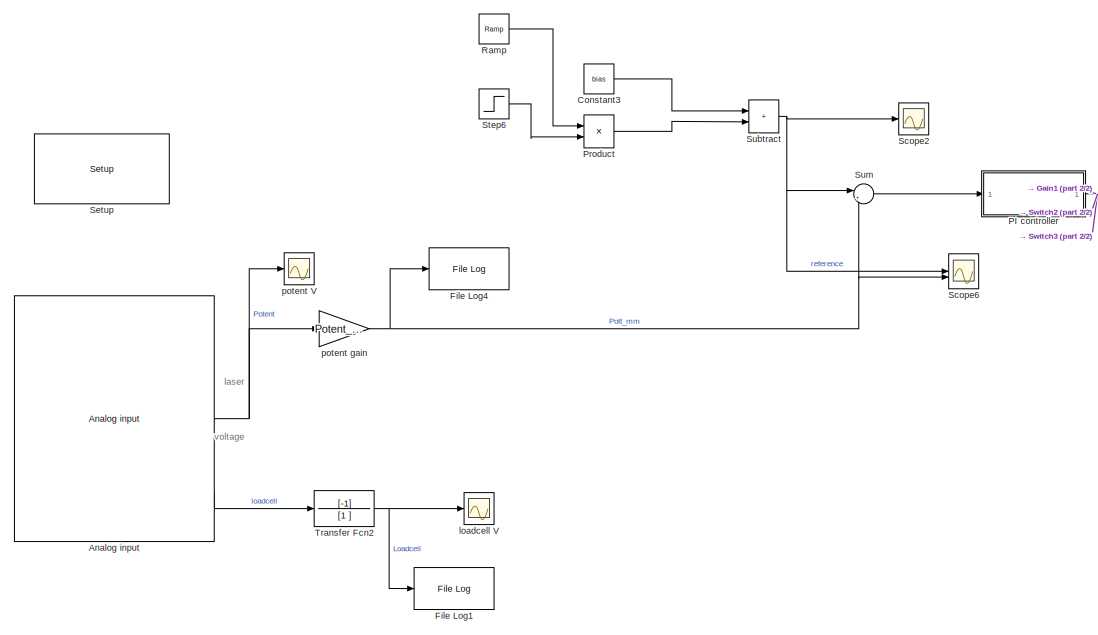
[diagram: root canvas - part 1/2, top left region]
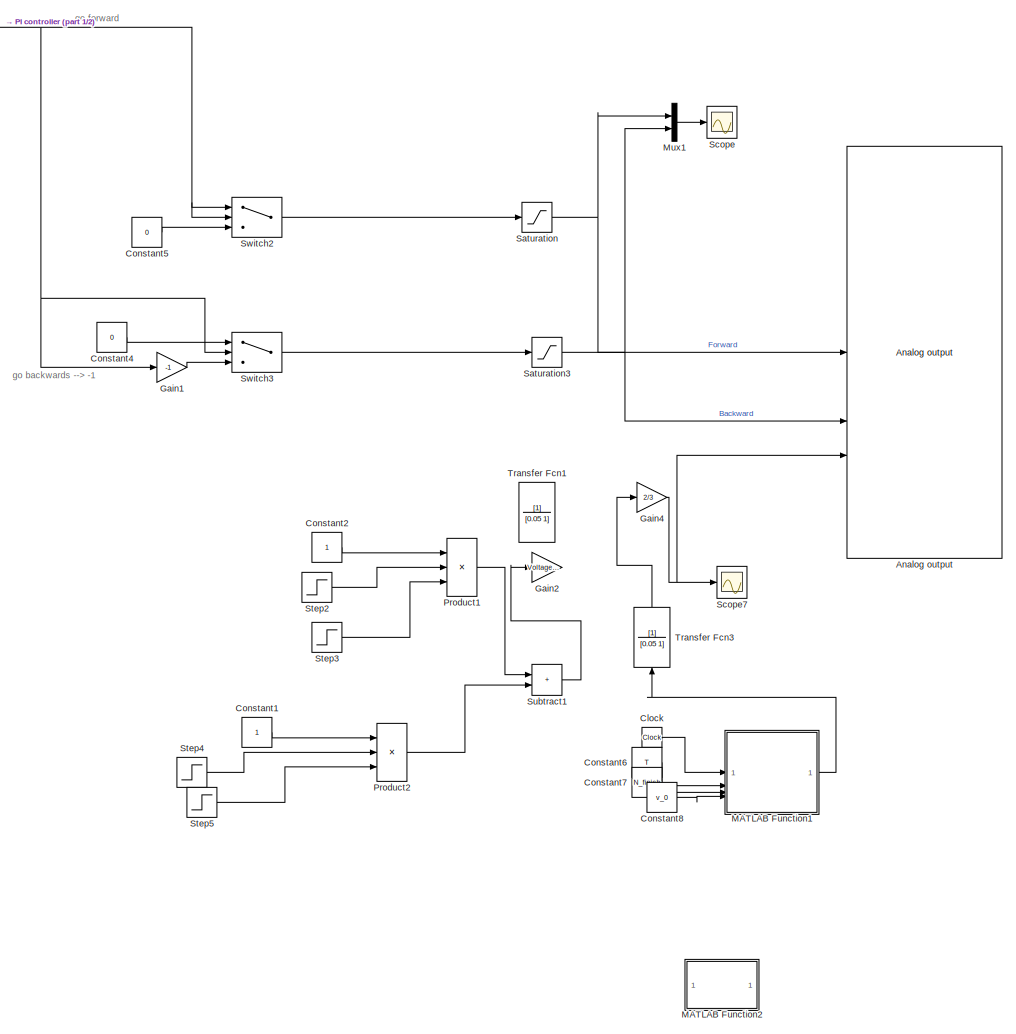
[diagram: root canvas - part 2/2, right side, full height]
MODEL slx_30471723604a
KIND model
CONFIG AbsTol = auto
CONFIG EnableMultiTasking = on
CONFIG FixedStep = T_sample
CONFIG MaxStep = auto
CONFIG MinStep = auto
CONFIG RelTol = 1e-3
CONFIG SampleTimeConstraint = Unconstrained
CONFIG SolverName = FixedStepAuto
CONFIG StartTime = 0.0
CONFIG StopTime = Duration_time
BLOCK [Reference] Analog input   REF=speedgoatlib_IO131/Analog input 
  SourceBlock = speedgoatlib_IO131/Analog input
  SourceProductName = IO131
  SourceType = ad_IO131
BLOCK [Reference] Analog output   REF=speedgoatlib_IO131/Analog output 
  SourceBlock = speedgoatlib_IO131/Analog output
  SourceProductName = IO131
  SourceType = da_IO131
BLOCK [Clock] Clock
  Commented = on
BLOCK [Constant] Constant1
  Commented = on
BLOCK [Constant] Constant2
  Commented = on
BLOCK [Constant] Constant3
  Value = bias
BLOCK [Constant] Constant4
  Value = 0
BLOCK [Constant] Constant5
  Value = 0
BLOCK [Constant] Constant6
  Commented = on
  Value = T
BLOCK [Constant] Constant7
  Commented = on
  Value = N_finish
BLOCK [Constant] Constant8
  Commented = on
  Value = v_0
BLOCK [Reference] File Log1  REF=slrealtimeloglib/File Log
  SourceBlock = slrealtimeloglib/File Log
  SourceType = slrealtimeloggingblock
BLOCK [Reference] File Log4  REF=slrealtimeloglib/File Log
  SourceBlock = slrealtimeloglib/File Log
  SourceType = slrealtimeloggingblock
BLOCK [Gain] Gain1
  Gain = -1
BLOCK [Gain] Gain2
  Commented = on
  Gain = Voltage/1000
BLOCK [Gain] Gain4
  Commented = on
  Gain = 2/3
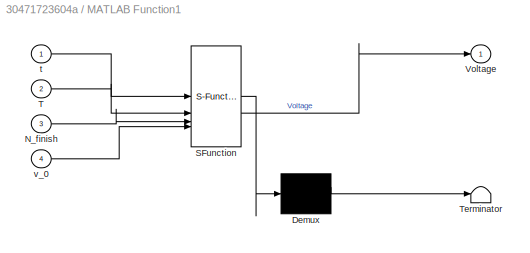
BLOCK [SubSystem] MATLAB Function1
  Commented = on
  ErrorFcn = Stateflow.Translate.translate
  PermitHierarchicalResolution = ExplicitOnly
  SFBlockType = MATLAB Function
  TreatAsAtomicUnit = on
BLOCK [Demux] MATLAB Function1/ Demux 
  Outputs = 1
BLOCK [S-Function] MATLAB Function1/ SFunction 
  EnableBusSupport = off
  FunctionName = sf_sfun
  PortCounts = [4 2]
  SFcnIsStateOwnerBlock = off
  SFunctionDeploymentMode = off
  Tag = Stateflow S-Function 1
BLOCK [Terminator] MATLAB Function1/ Terminator 
BLOCK [Inport] MATLAB Function1/N_finish
  Port = 3
BLOCK [Inport] MATLAB Function1/T
  Port = 2
BLOCK [Outport] MATLAB Function1/Voltage
BLOCK [Inport] MATLAB Function1/t
BLOCK [Inport] MATLAB Function1/v_0
  Port = 4
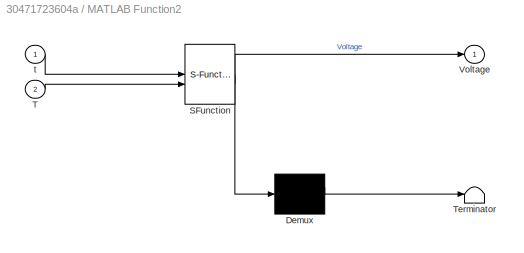
BLOCK [SubSystem] MATLAB Function2
  Commented = on
  ErrorFcn = Stateflow.Translate.translate
  PermitHierarchicalResolution = ExplicitOnly
  SFBlockType = MATLAB Function
  TreatAsAtomicUnit = on
BLOCK [Demux] MATLAB Function2/ Demux 
  Outputs = 1
BLOCK [S-Function] MATLAB Function2/ SFunction 
  EnableBusSupport = off
  FunctionName = sf_sfun
  PortCounts = [2 2]
  SFcnIsStateOwnerBlock = off
  SFunctionDeploymentMode = off
  Tag = Stateflow S-Function 3
BLOCK [Terminator] MATLAB Function2/ Terminator 
BLOCK [Inport] MATLAB Function2/T
  Port = 2
BLOCK [Outport] MATLAB Function2/Voltage
BLOCK [Inport] MATLAB Function2/t
BLOCK [Mux] Mux1
  DisplayOption = bar
  Inputs = 2
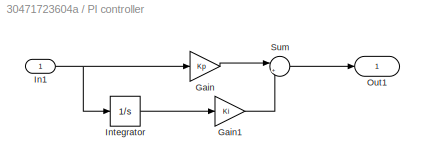
BLOCK [SubSystem] PI controller
BLOCK [Gain] PI controller/Gain
  Gain = Kp
BLOCK [Gain] PI controller/Gain1
  Gain = Ki
BLOCK [Inport] PI controller/In1
BLOCK [Integrator] PI controller/Integrator
BLOCK [Outport] PI controller/Out1
BLOCK [Sum] PI controller/Sum
  Inputs = |++
BLOCK [Product] Product
BLOCK [Product] Product1
  Commented = on
  Inputs = 3
BLOCK [Product] Product2
  Commented = on
  Inputs = 3
BLOCK [Reference] Ramp  REF=simulink/Sources/Ramp
  SourceBlock = simulink/Sources/Ramp
  SourceType = Ramp
BLOCK [Saturate] Saturation
  LowerLimit = 0
  UpperLimit = 5
BLOCK [Saturate] Saturation3
  LowerLimit = 0
  UpperLimit = 5
BLOCK [Scope] Scope
  ActiveDisplayYMaximum = 5.625
  ActiveDisplayYMinimum = -0.62499999999999989
  DataLoggingVariableName = ScopeData1
  Floating = off
  GraphicalSettings = {"Style":{"BackgroundColor":[0.12941176470588237,0.12941176470588237,0.12941176470588237],"AxesColor":[0.07058823529411765,0.07058823529411765,0.07058823529411765],"LabelsColor":[0.8509803921568627,0.8509803921568627,0.8509803921568627],"PreserveColors":false,"Visible":[true,true],"LineStyle":["-","-"],"LineWidth":[1.5,1.5],"BarWidth":[0.9,0.9],"LineColor":["auto","auto"],"LineFaceAlpha":[1,1],"Li...<+2066ch>
  MultipleDisplayCache = [{"MaxYLimMag":5.625,"MaxYLimReal":5.625,"MinYLimMag":0,"MinYLimReal":-0.62499999999999989,"PlotAsMagnitudePhase":false,"ShowGrid":true,"ShowLegend":false,"Title":"%<SignalLabel>","YLabel":""}]
  NumInputPorts = 1
  ScopeFrameLocation = window
  WasSavedAsWebScope = on
  WindowPosition = [113.000000,96.000000,1280.000000,682.000000,]
BLOCK [Scope] Scope2
  ActiveDisplayYMaximum = 97.9999859375
  ActiveDisplayYMinimum = 78.0000015625
  Floating = off
  GraphicalSettings = {"Style":{"BackgroundColor":[0.12941176470588237,0.12941176470588237,0.12941176470588237],"AxesColor":[0.07058823529411765,0.07058823529411765,0.07058823529411765],"LabelsColor":[0.8509803921568627,0.8509803921568627,0.8509803921568627],"PreserveColors":false,"Visible":[true],"LineStyle":["-"],"LineWidth":[1.5],"BarWidth":[0.9],"LineColor":["auto"],"LineFaceAlpha":[1],"LineEdgeAlpha":[1],"Marker":...<+1994ch>
  MultipleDisplayCache = [{"MaxYLimMag":97.9999859375,"MaxYLimReal":97.9999859375,"MinYLimMag":78.0000015625,"MinYLimReal":78.0000015625,"PlotAsMagnitudePhase":false,"ShowGrid":true,"ShowLegend":false,"Title":"%<SignalLabel>","YLabel":""}]
  NumInputPorts = 1
  ScopeFrameLocation = window
  WasSavedAsWebScope = on
  WindowPosition = [1.000000,49.000000,1536.000000,793.000000,]
BLOCK [Scope] Scope6
  ActiveDisplayYMaximum = 116.08282954478828
  ActiveDisplayYMinimum = 80.761033438366127
  DataLoggingVariableName = ScopeData6
  Floating = off
  GraphicalSettings = {"AxesScalingProperties":{"AlignXAxis":"Center","AlignYAxis":"Center","AutoScaleXAxisLimits":false,"AxesScaling":"Manual","AxesScalingNumUpdates":10,"ExpandOnly":true,"ScaleAxesLimitsAtStop":false,"XAxisDataRange":100,"YAxisDataRange":80},"DisplayProperties":{"ColorOrder":["auto","auto","auto","auto","auto","auto","auto","auto","auto","auto","auto","auto","auto","auto","auto","auto","auto","auto",...<+2155ch>
  LayoutDimensionsString = [1,1]
  MultipleDisplayCache = [{"MaxYLimMag":98.080939574273287,"MaxYLimReal":116.08282954478828,"MinYLimMag":77.4290169375143,"MinYLimReal":80.761033438366127,"PlotAsMagnitudePhase":false,"ShowGrid":true,"ShowLegend":false,"Title":"%<SignalLabel>","YLabel":""}]
  NumInputPorts = 2
  ScopeFrameLocation = window
  Visible = on
  WasSavedAsWebScope = on
  WindowPosition = [1.000000,49.000000,1536.000000,793.000000,]
BLOCK [Scope] Scope7
  ActiveDisplayYMaximum = 4.9999999896942331
  ActiveDisplayYMinimum = -4.9999999896942331
  Commented = on
  DataLoggingVariableName = ScopeData2
  Floating = off
  GraphicalSettings = {"Style":{"BackgroundColor":[0.12941176470588237,0.12941176470588237,0.12941176470588237],"AxesColor":[0.07058823529411765,0.07058823529411765,0.07058823529411765],"LabelsColor":[0.8509803921568627,0.8509803921568627,0.8509803921568627],"PreserveColors":false,"Visible":[true],"LineStyle":["-"],"LineWidth":[1.5],"BarWidth":[0.9],"LineColor":["auto"],"LineFaceAlpha":[1],"LineEdgeAlpha":[1],"Marker":...<+1991ch>
  MultipleDisplayCache = [{"MaxYLimMag":4.9999999896942331,"MaxYLimReal":4.9999999896942331,"MinYLimMag":0,"MinYLimReal":-4.9999999896942331,"PlotAsMagnitudePhase":false,"ShowGrid":true,"ShowLegend":false,"Title":"%<SignalLabel>","YLabel":""}]
  NumInputPorts = 1
  ScopeFrameLocation = window
  WasSavedAsWebScope = on
  WindowPosition = [2.000000,50.000000,1278.000000,682.000000,]
BLOCK [Reference] Setup   REF=speedgoatlib_IO131/Setup 
  SourceBlock = speedgoatlib_IO131/Setup
  SourceProductName = IO131
  SourceType = setup_IO131
BLOCK [Step] Step2
  Commented = on
  SampleTime = T_sample
  Time = (N_start-0.25)*T
BLOCK [Step] Step3
  After = 0
  Before = 1
  Commented = on
  SampleTime = T_sample
  Time = (cyclenum+0.25)*T
BLOCK [Step] Step4
  Commented = on
  SampleTime = T_sample
  Time = (2*cyclenum+0.25)*T
BLOCK [Step] Step5
  After = 0
  Before = 1
  Commented = on
  SampleTime = T_sample
  Time = (cyclenum+0.25)*T
BLOCK [Step] Step6
  After = 0
  Before = 1
  SampleTime = T_sample
  Time = N_finish*T
BLOCK [Sum] Subtract
  IconShape = rectangular
BLOCK [Sum] Subtract1
  Commented = on
  IconShape = rectangular
BLOCK [Sum] Sum
  Inputs = |+-
BLOCK [Switch] Switch2
  Criteria = u2 > Threshold
  InputSameDT = off
  SaturateOnIntegerOverflow = off
BLOCK [Switch] Switch3
  InputSameDT = off
  SaturateOnIntegerOverflow = off
BLOCK [TransferFcn] Transfer Fcn1
  Commented = on
  Denominator = [0.05 1]
  NameLocation = right
BLOCK [TransferFcn] Transfer Fcn2
  Denominator = [1 ]
  Numerator = [-1]
BLOCK [TransferFcn] Transfer Fcn3
  Commented = on
  Denominator = [0.05 1]
  NameLocation = right
BLOCK [Scope] loadcell V
  ActiveDisplayYMaximum = -0.15693904020752275
  ActiveDisplayYMinimum = -2.2558175020981155
  DataLoggingVariableName = ScopeData2
  Floating = off
  GraphicalSettings = {"AxesScalingProperties":{"AlignXAxis":"Center","AlignYAxis":"Center","AutoScaleXAxisLimits":false,"AxesScaling":"Manual","AxesScalingNumUpdates":10,"ExpandOnly":true,"ScaleAxesLimitsAtStop":false,"XAxisDataRange":100,"YAxisDataRange":80},"DisplayProperties":{"ColorOrder":["auto","auto","auto","auto","auto","auto","auto","auto","auto","auto","auto","auto","auto","auto","auto","auto","auto","auto",...<+2014ch>
  MultipleDisplayCache = [{"MaxYLimMag":2.2558175020981155,"MaxYLimReal":-0.15693904020752275,"MinYLimMag":0,"MinYLimReal":-2.2558175020981155,"PlotAsMagnitudePhase":false,"ShowGrid":true,"ShowLegend":false,"Title":"%<SignalLabel>","YLabel":""}]
  NumInputPorts = 1
  ScopeFrameLocation = window
  Visible = on
  WasSavedAsWebScope = on
  WindowPosition = [1.000000,49.000000,1536.000000,793.000000,]
BLOCK [Scope] potent V
  ActiveDisplayYMaximum = 3.5191904526319995
  ActiveDisplayYMinimum = 3.4820565734642819
  DataLoggingVariableName = ScopeData3
  Floating = off
  GraphicalSettings = {"Style":{"BackgroundColor":[0.12941176470588237,0.12941176470588237,0.12941176470588237],"AxesColor":[0.07058823529411765,0.07058823529411765,0.07058823529411765],"LabelsColor":[0.8509803921568627,0.8509803921568627,0.8509803921568627],"PreserveColors":false,"Visible":[true],"LineStyle":["-"],"LineWidth":[1.5],"BarWidth":[0.9],"LineColor":["auto"],"LineFaceAlpha":[1],"LineEdgeAlpha":[1],"Marker":...<+2025ch>
  MultipleDisplayCache = [{"MaxYLimMag":3.576333257038224,"MaxYLimReal":3.5191904526319995,"MinYLimMag":2.8233005264362556,"MinYLimReal":3.4820565734642819,"PlotAsMagnitudePhase":false,"ShowGrid":true,"ShowLegend":false,"Title":"%<SignalLabel>","YLabel":""}]
  NumInputPorts = 1
  ScopeFrameLocation = window
  WasSavedAsWebScope = on
  WindowPosition = [1.000000,49.000000,1536.000000,793.000000,]
BLOCK [Gain] potent gain
  Gain = Potent_gain
ANNOTATION (root): go backwards --> -1
ANNOTATION (root): go forward
ANNOTATION (root): laser
ANNOTATION (root): voltage
NET Analog input :1 -> potent V:1, potent gain:1
LINE Analog input :4 -> Transfer Fcn2:1
LINE Clock:1 -> MATLAB Function1:1
LINE Constant1:1 -> Product2:1
LINE Constant2:1 -> Product1:1
LINE Constant3:1 -> Subtract:1
LINE Constant4:1 -> Switch3:1
LINE Constant5:1 -> Switch2:3
LINE Constant6:1 -> MATLAB Function1:2
LINE Constant7:1 -> MATLAB Function1:3
LINE Constant8:1 -> MATLAB Function1:4
LINE Gain1:1 -> Switch3:3
NET Gain4:1 -> Analog output :3, Scope7:1
LINE MATLAB Function1:1 -> Transfer Fcn3:1
LINE Mux1:1 -> Scope:1
LINE PI controller/Gain1:1 -> PI controller/Sum:2
LINE PI controller/Gain:1 -> PI controller/Sum:1
NET PI controller/In1:1 -> PI controller/Gain:1, PI controller/Integrator:1
LINE PI controller/Integrator:1 -> PI controller/Gain1:1
LINE PI controller/Sum:1 -> PI controller/Out1:1
NET PI controller:1 -> Gain1:1, Switch2:1, Switch2:2, Switch3:2
LINE Product1:1 -> Subtract1:1
LINE Product2:1 -> Subtract1:2
LINE Product:1 -> Subtract:2
LINE Ramp:1 -> Product:1
NET Saturation3:1 -> Analog output :2, Mux1:2
NET Saturation:1 -> Analog output :1, Mux1:1
LINE Step2:1 -> Product1:2
LINE Step3:1 -> Product1:3
LINE Step4:1 -> Product2:2
LINE Step5:1 -> Product2:3
LINE Step6:1 -> Product:2
LINE Subtract1:1 -> Gain2:1
NET Subtract:1 -> Scope2:1, Scope6:1, Sum:1
LINE Sum:1 -> PI controller:1
LINE Switch2:1 -> Saturation:1
LINE Switch3:1 -> Saturation3:1
NET Transfer Fcn2:1 -> File Log1:1, loadcell V:1
LINE Transfer Fcn3:1 -> Gain4:1
NET potent gain:1 -> File Log4:1, Scope6:2, Sum:2
note: NET lines group one-source signal fan-out (src -> all destinations, sorted); 1:1 wires keep LINE
CHART MATLAB Function1 states=1 transitions=1
  STATE_LABEL 'eML_blk_kernel()'
  STATE_LABEL 'SCRIPT:\nfunction Voltage = generate_voltage(t, T, N_finish, v_0)\n% Generates a voltage waveform with:\n% - 3T initial rest (0 V)\n% - N cycles of pattern [0, +2, 0, -2]\n% - 1T final rest (0 V)\n%\n% t : current time\n% T : one cycle duration\n% N : number of active cycles\n\n   % total_time = Initial a*T rest + applying voltage_time*T + final resting*T;  % total signal duration\n     total_time = (N_finish...<+699ch>'
CHART MATLAB Function2 states=1 transitions=1
  STATE_LABEL 'eML_blk_kernel()'
  STATE_LABEL 'SCRIPT:\nfunction Voltage = generate_voltage(t, T)\n% t: current time\n% T: time period\n\n    if t < (T)\n        Voltage = 0;\n    elseif t < (T+T*1/4)\n        Voltage = 2;\n    elseif t < (T+T*1/2)\n        Voltage = 0;\n    elseif t < (T+T*3/4)\n        Voltage = -2;\n    elseif t < (2*T)\n        Voltage = 0;\n    elseif t < (2*T+T*1/4)\n        Voltage = 2;\n    elseif t < (2*T+T*1/2)\n        Voltage = 0;\n ...<+3315ch>'
CHART  states=0 transitions=0
CHART  states=0 transitions=0
